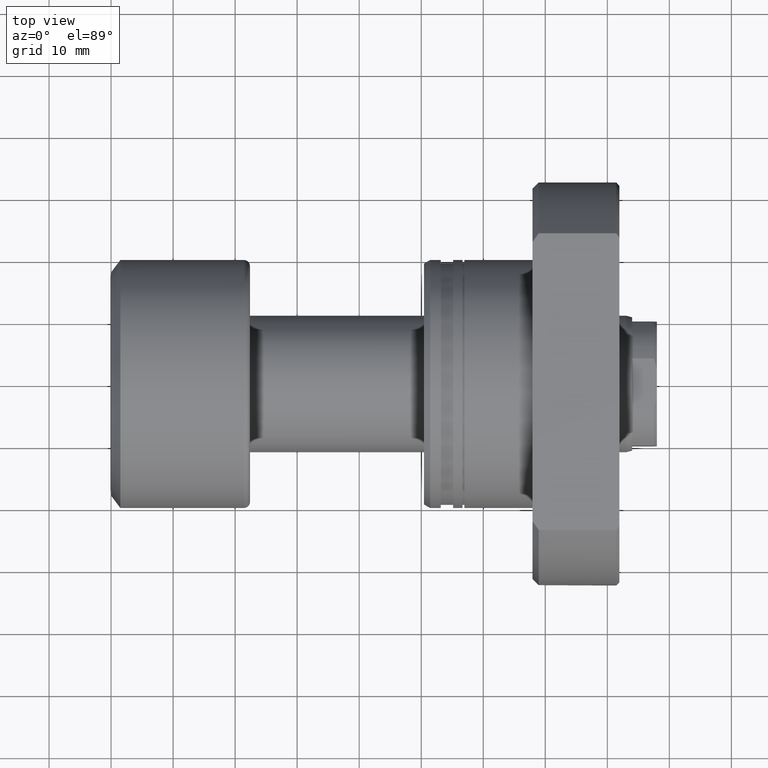
[diagram: clean part render]
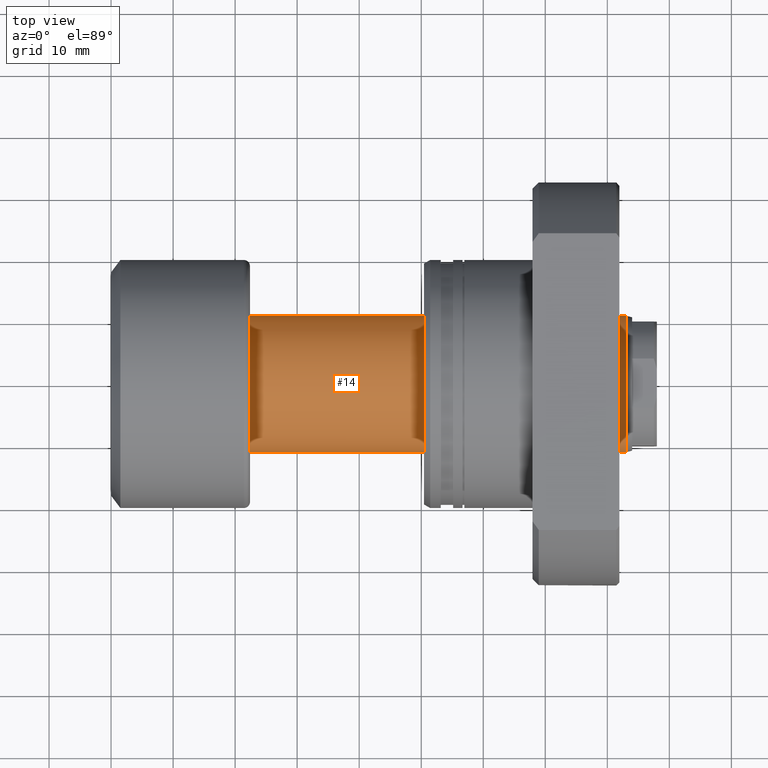
[diagram: same view with one face highlighted and labeled with its STEP entity id]
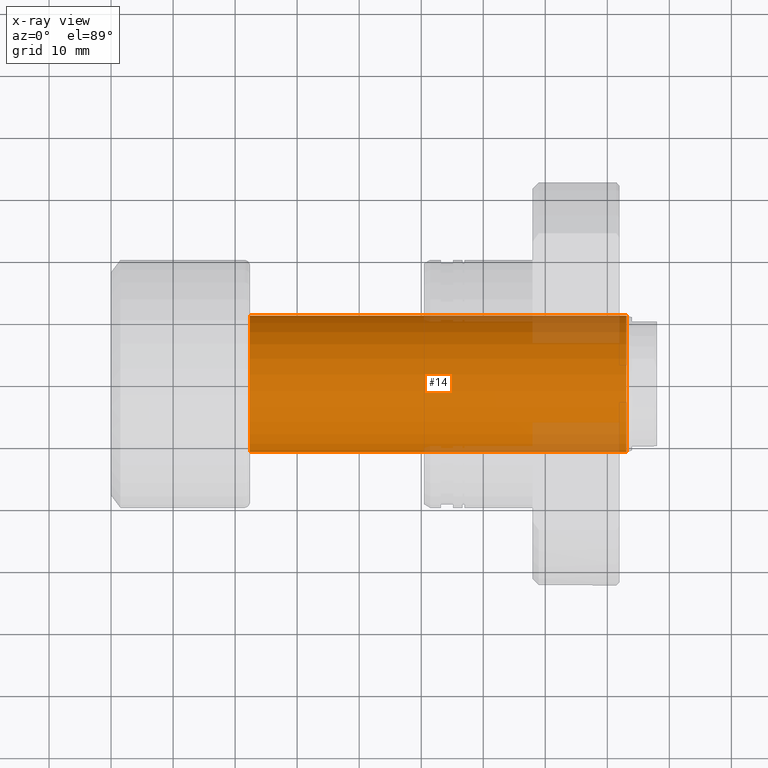
[diagram: x-ray of the same camera — body ghosted, the highlighted face saturated]
A machine part, top view. The second image highlights one B-rep face of the part: STEP entity #14.
The next image is the same camera in x-ray: the body ghosted, the highlighted face saturated — about 12% of this face is hidden behind the body in this view.
In plain terms, the highlighted cylindrical surface (partial cylindrical patch) has radius 11 mm, axis along (-1, -0, -0).
Its self-contained STEP definition (entity closure, byte-faithful):
#5 = DIRECTION ( 'NONE',  ( -1.000000000000000000, -1.069542322069065801E-17, -0.000000000000000000 ) ) ;
#14 = ADVANCED_FACE ( 'NONE', ( #1181 ), #3175, .T. ) ;
#17 = DIRECTION ( 'NONE',  ( -1.000000000000000000, -1.069542322069065801E-17, -0.000000000000000000 ) ) ;
#18 = VECTOR ( 'NONE', #2170, 1000.000000000000000 ) ;
#42 = CARTESIAN_POINT ( 'NONE',  ( 83.06675751232377536, -11.00000000000018829, 0.000000000000000000 ) ) ;
#120 = ORIENTED_EDGE ( 'NONE', *, *, #2280, .F. ) ;
#168 = EDGE_CURVE ( 'NONE', #1580, #992, #3205, .T. ) ;
#195 = CARTESIAN_POINT ( 'NONE',  ( 1.176496554275982688E-16, -11.00000000000009415, 0.000000000000000000 ) ) ;
#278 = CARTESIAN_POINT ( 'NONE',  ( -1.176496554275982688E-16, 11.00000000000009415, 1.347111479062100238E-15 ) ) ;
#408 = DIRECTION ( 'NONE',  ( 0.000000000000000000, -1.000000000000000000, 0.000000000000000000 ) ) ;
#530 = DIRECTION ( 'NONE',  ( 0.000000000000000000, -1.000000000000000000, 0.000000000000000000 ) ) ;
#553 = EDGE_CURVE ( 'NONE', #824, #1196, #979, .T. ) ;
#811 = EDGE_LOOP ( 'NONE', ( #2323, #2870, #120, #1864 ) ) ;
#814 = CARTESIAN_POINT ( 'NONE',  ( 83.06675751232377536, 11.00000000000019185, 1.347111479062111873E-15 ) ) ;
#824 = VERTEX_POINT ( 'NONE', #814 ) ;
#886 = CARTESIAN_POINT ( 'NONE',  ( 22.39999999999999858, 11.00000000000000000, 1.347111479062094124E-15 ) ) ;
#979 = LINE ( 'NONE', #278, #2820 ) ;
#992 = VERTEX_POINT ( 'NONE', #1618 ) ;
#1181 = FACE_OUTER_BOUND ( 'NONE', #811, .T. ) ;
#1196 = VERTEX_POINT ( 'NONE', #886 ) ;
#1379 = DIRECTION ( 'NONE',  ( 1.069542322069065955E-17, -1.000000000000000000, 0.000000000000000000 ) ) ;
#1557 = EDGE_CURVE ( 'NONE', #1580, #824, #2818, .T. ) ;
#1565 = DIRECTION ( 'NONE',  ( -1.000000000000000000, -1.069542322069065801E-17, -0.000000000000000000 ) ) ;
#1573 = AXIS2_PLACEMENT_3D ( 'NONE', #2874, #2689, #408 ) ;
#1580 = VERTEX_POINT ( 'NONE', #42 ) ;
#1618 = CARTESIAN_POINT ( 'NONE',  ( 22.39999999999999858, -11.00000000000000000, 0.000000000000000000 ) ) ;
#1864 = ORIENTED_EDGE ( 'NONE', *, *, #168, .F. ) ;
#1923 = CARTESIAN_POINT ( 'NONE',  ( 0.000000000000000000, 0.000000000000000000, 0.000000000000000000 ) ) ;
#2170 = DIRECTION ( 'NONE',  ( -1.000000000000000000, -1.069542322069065801E-17, -0.000000000000000000 ) ) ;
#2209 = CIRCLE ( 'NONE', #1573, 11.00000000000000000 ) ;
#2280 = EDGE_CURVE ( 'NONE', #992, #1196, #2209, .T. ) ;
#2323 = ORIENTED_EDGE ( 'NONE', *, *, #1557, .T. ) ;
#2455 = AXIS2_PLACEMENT_3D ( 'NONE', #2750, #5, #530 ) ;
#2672 = AXIS2_PLACEMENT_3D ( 'NONE', #1923, #1565, #1379 ) ;
#2689 = DIRECTION ( 'NONE',  ( -1.000000000000000000, -1.069542322069065801E-17, -0.000000000000000000 ) ) ;
#2750 = CARTESIAN_POINT ( 'NONE',  ( 83.06675751232377536, 8.884341271647877269E-16, 0.000000000000000000 ) ) ;
#2818 = CIRCLE ( 'NONE', #2455, 11.00000000000019007 ) ;
#2820 = VECTOR ( 'NONE', #17, 1000.000000000000000 ) ;
#2870 = ORIENTED_EDGE ( 'NONE', *, *, #553, .T. ) ;
#2874 = CARTESIAN_POINT ( 'NONE',  ( 22.39999999999999858, 2.395774801434707739E-16, 0.000000000000000000 ) ) ;
#3175 = CYLINDRICAL_SURFACE ( 'NONE', #2672, 11.00000000000009415 ) ;
#3205 = LINE ( 'NONE', #195, #18 ) ;